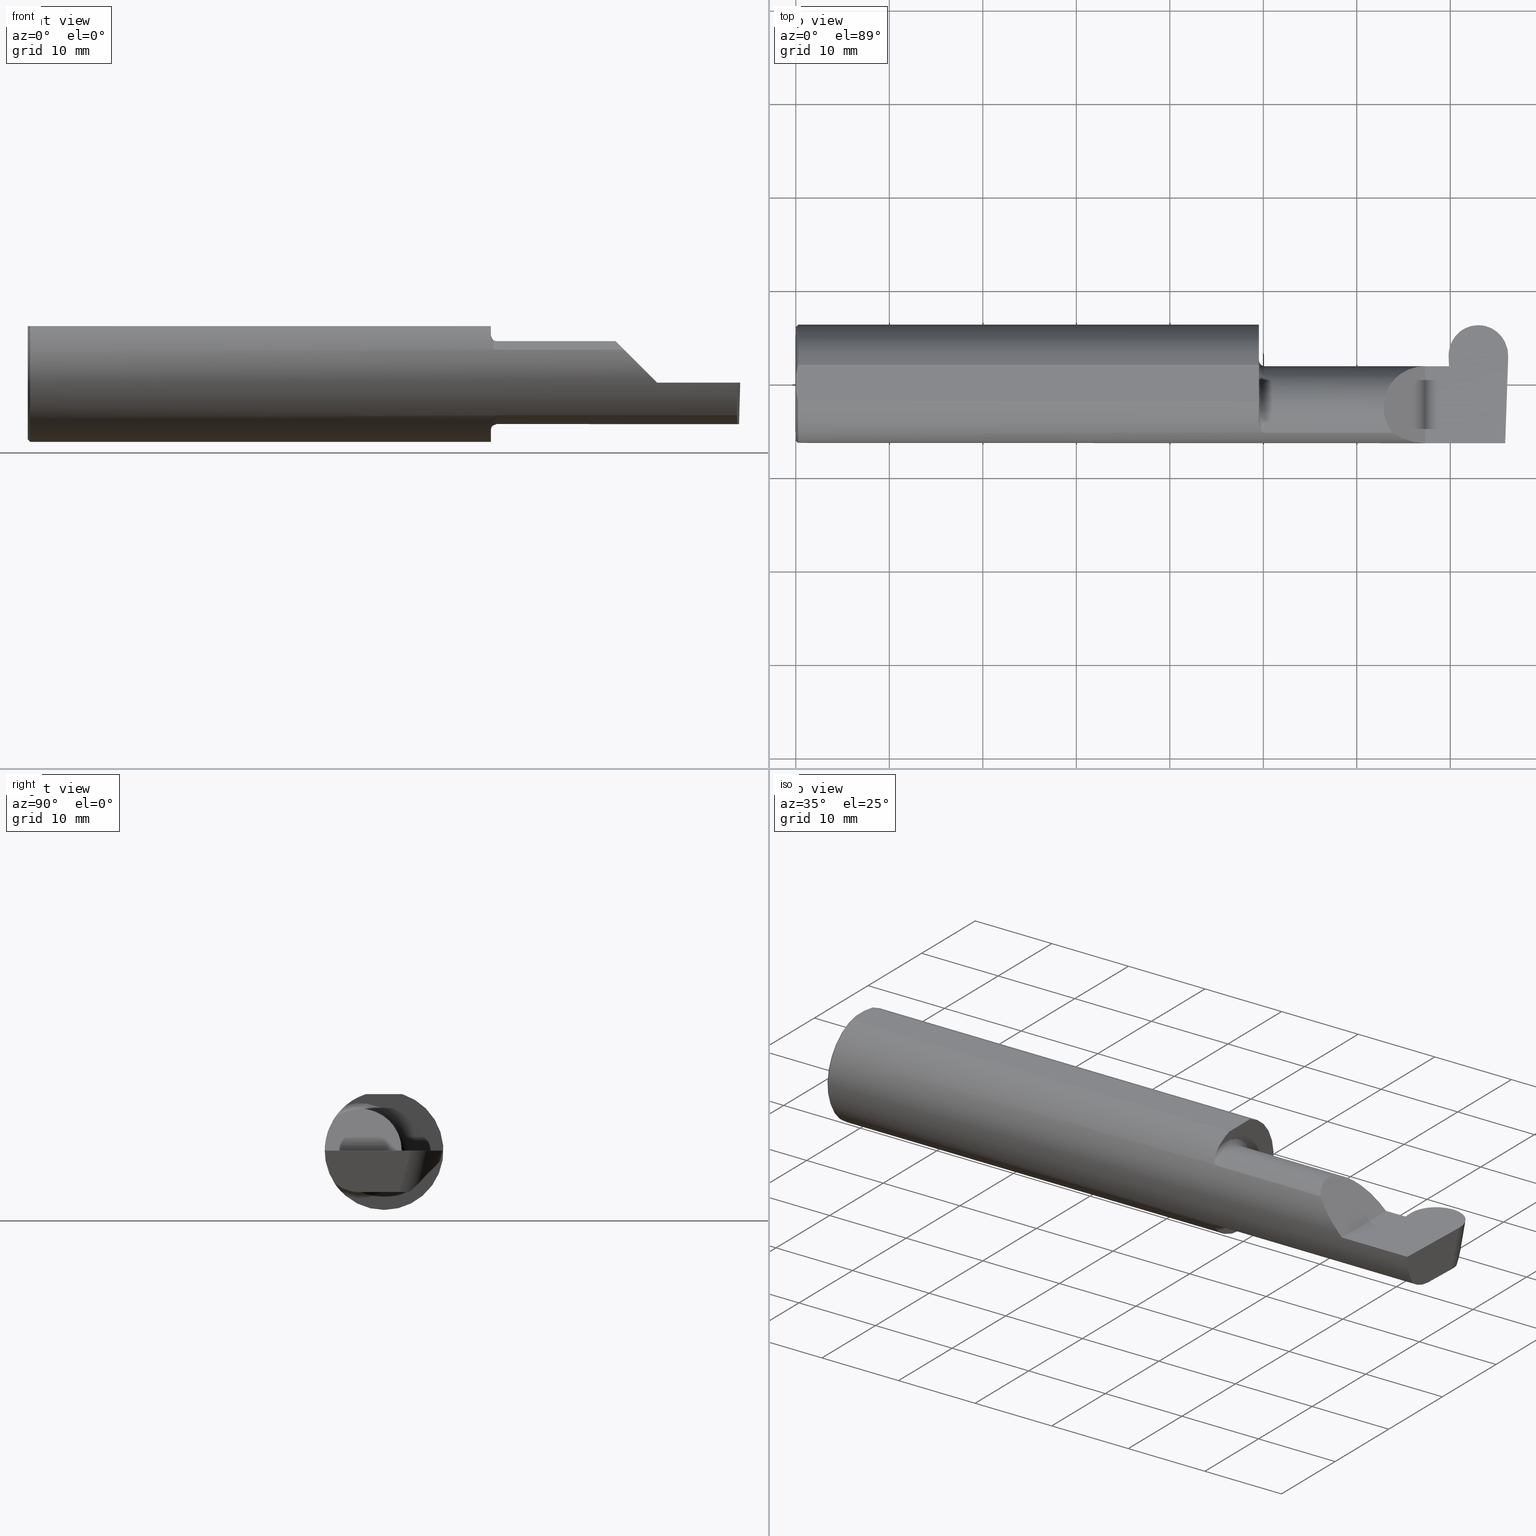
[diagram: canonical four-view strip — front | top / right | iso, engineering-drawing reading convention]
A machine part, canonical four-view strip (front | top / right | iso — engineering-drawing reading convention). The complete STEP part file that produces these views, byte-faithful:
ISO-10303-21;
HEADER;
FILE_DESCRIPTION (( 'STEP AP203' ),
    '1' );
FILE_NAME ('222521-GFR250-16.STEP',
    '2024-06-28T19:28:29',
    ( '' ),
    ( '' ),
    'SwSTEP 2.0',
    'SolidWorks 2024',
    '' );
FILE_SCHEMA (( 'CONFIG_CONTROL_DESIGN' ));
ENDSEC;

DATA;
#1 = EDGE_LOOP ( 'NONE', ( #122, #570, #582, #646, #242, #265, #209, #213, #458, #60 ) ) ;
#2 = AXIS2_PLACEMENT_3D ( 'NONE', #204, #495, #440 ) ;
#3 = DIRECTION ( 'NONE',  ( 0.000000000000000000, 0.9659258262890680902, -0.2588190451025210170 ) ) ;
#4 = ADVANCED_FACE ( 'NONE', ( #576 ), #54, .F. ) ;
#5 = DIRECTION ( 'NONE',  ( 0.01806679408117533442, 0.000000000000000000, -0.9998367821557817559 ) ) ;
#6 = CYLINDRICAL_SURFACE ( 'NONE', #381, 0.1255000000000000004 ) ;
#7 = EDGE_LOOP ( 'NONE', ( #660, #640, #613, #62, #698, #485 ) ) ;
#8 = CARTESIAN_POINT ( 'NONE',  ( 2.750478392166241903, 0.07404339472834139957, -0.006107411922948607387 ) ) ;
#9 = CARTESIAN_POINT ( 'NONE',  ( 3.402190948718818664, -0.1008500000000000091, -0.1750000000000000722 ) ) ;
#10 = VERTEX_POINT ( 'NONE', #108 ) ;
#11 = CARTESIAN_POINT ( 'NONE',  ( 2.986241469175252128, -0.2498499999999999610, -0.04956584089959695932 ) ) ;
#12 = DATE_AND_TIME ( #707, #562 ) ;
#13 = ORIENTED_EDGE ( 'NONE', *, *, #722, .T. ) ;
#14 = ADVANCED_FACE ( 'NONE', ( #225 ), #508, .T. ) ;
#15 = AXIS2_PLACEMENT_3D ( 'NONE', #321, #554, #95 ) ;
#16 = CARTESIAN_POINT ( 'NONE',  ( 4.499279347985562423E-32, -0.2498499999999999610, 3.673940397442054938E-16 ) ) ;
#17 = DIRECTION ( 'NONE',  ( 0.000000000000000000, 0.000000000000000000, 1.000000000000000000 ) ) ;
#18 = CARTESIAN_POINT ( 'NONE',  ( 2.739220100782099543, 0.07404339472834142732, -0.006107411922947214404 ) ) ;
#19 = CALENDAR_DATE ( 2024, 28, 6 ) ;
#20 = EDGE_CURVE ( 'NONE', #633, #298, #515, .T. ) ;
#21 = CARTESIAN_POINT ( 'NONE',  ( 2.768056554299977989, 0.1849635101964373640, -0.09586082695173160639 ) ) ;
#22 = EDGE_LOOP ( 'NONE', ( #609, #293, #89 ) ) ;
#23 = AXIS2_PLACEMENT_3D ( 'NONE', #649, #73, #124 ) ;
#24 = CARTESIAN_POINT ( 'NONE',  ( 1.975000000000000089, -0.1008500000000000368, 0.000000000000000000 ) ) ;
#25 = CARTESIAN_POINT ( 'NONE',  ( 0.009999999999999856226, 0.000000000000000000, 0.000000000000000000 ) ) ;
#26 = APPLICATION_CONTEXT ( 'configuration controlled 3d designs of mechanical parts and assemblies' ) ;
#27 = ADVANCED_FACE ( 'NONE', ( #216 ), #295, .T. ) ;
#28 = PERSON_AND_ORGANIZATION ( #187, #643 ) ;
#29 = ORIENTED_EDGE ( 'NONE', *, *, #201, .F. ) ;
#30 = CARTESIAN_POINT ( 'NONE',  ( 2.650000000000000355, 0.07414999999999997982, 1.285879139104719253E-16 ) ) ;
#31 = CARTESIAN_POINT ( 'NONE',  ( 2.871989500000000195, 0.2348243371481683328, -0.04599999999999999922 ) ) ;
#32 = ORIENTED_EDGE ( 'NONE', *, *, #93, .T. ) ;
#33 = DIRECTION ( 'NONE',  ( -0.01806954526206910883, 0.01744955702544859211, 0.9996844524616943506 ) ) ;
#34 = DIRECTION ( 'NONE',  ( -0.03489949670249542502, -0.9993908270190959842, 0.000000000000000000 ) ) ;
#35 = ORIENTED_EDGE ( 'NONE', *, *, #568, .F. ) ;
#36 = CARTESIAN_POINT ( 'NONE',  ( 1.968863362722770738, -0.2068301641248770362, -0.1401678546132360814 ) ) ;
#37 = TOROIDAL_SURFACE ( 'NONE', #668, 0.1999999999999999556, 0.02499999999999993547 ) ;
#38 = VECTOR ( 'NONE', #363, 39.37007874015748143 ) ;
#39 = DIRECTION ( 'NONE',  ( 0.000000000000000000, -0.9998476951563912696, 0.01745240643728358451 ) ) ;
#40 = AXIS2_PLACEMENT_3D ( 'NONE', #586, #522, #452 ) ;
#41 = EDGE_LOOP ( 'NONE', ( #366, #374, #206, #141, #227, #688, #557 ) ) ;
#42 = CARTESIAN_POINT ( 'NONE',  ( 1.975000000000000089, -0.2080850024789289987, -0.1382955322609668025 ) ) ;
#43 =( BOUNDED_CURVE ( )  B_SPLINE_CURVE ( 3, ( #510, #408, #737, #77 ),
 .UNSPECIFIED., .F., .T. ) 
 B_SPLINE_CURVE_WITH_KNOTS ( ( 4, 4 ),
 ( 3.126640370658172241, 4.420746632591429304 ),
 .UNSPECIFIED. ) 
 CURVE ( )  GEOMETRIC_REPRESENTATION_ITEM ( )  RATIONAL_B_SPLINE_CURVE ( ( 1.000000000000000000, 0.8652424962921507756, 0.8652424962921507756, 1.000000000000000000 ) ) 
 REPRESENTATION_ITEM ( '' )  );
#44 = CARTESIAN_POINT ( 'NONE',  ( 1.973329956043142985, -0.2080850024798591713, 0.1382955322595674219 ) ) ;
#45 = ORIENTED_EDGE ( 'NONE', *, *, #642, .F. ) ;
#46 = LINE ( 'NONE', #289, #606 ) ;
#47 = CARTESIAN_POINT ( 'NONE',  ( 2.753585400763539415, -0.1008500000000000091, -0.1750000000000000444 ) ) ;
#48 = DIRECTION ( 'NONE',  ( -1.000000000000000000, -4.274981070833214909E-17, 0.000000000000000000 ) ) ;
#49 = ADVANCED_FACE ( 'NONE', ( #339 ), #396, .T. ) ;
#50 = DIRECTION ( 'NONE',  ( -0.000000000000000000, 1.223176342469858371E-16, 1.000000000000000000 ) ) ;
#51 = VECTOR ( 'NONE', #436, 39.37007874015748143 ) ;
#52 = CARTESIAN_POINT ( 'NONE',  ( 3.000000000000000444, -0.2500000000000000555, 0.000000000000000000 ) ) ;
#53 = CARTESIAN_POINT ( 'NONE',  ( 2.750478392166241903, 0.07404339472834139957, -0.006107411922948607387 ) ) ;
#54 = PLANE ( 'NONE',  #364 ) ;
#55 = ORIENTED_EDGE ( 'NONE', *, *, #106, .F. ) ;
#56 = CARTESIAN_POINT ( 'NONE',  ( 0.005459900170181723050, -0.06167314502012866823, 0.2378499999999998671 ) ) ;
#57 = EDGE_CURVE ( 'NONE', #679, #197, #134, .T. ) ;
#58 = DIRECTION ( 'NONE',  ( -0.0003154085283454350426, 0.9999999502587288980, -1.223178646569383192E-16 ) ) ;
#59 = AXIS2_PLACEMENT_3D ( 'NONE', #395, #50, #338 ) ;
#60 = ORIENTED_EDGE ( 'NONE', *, *, #608, .T. ) ;
#61 = FACE_OUTER_BOUND ( 'NONE', #690, .T. ) ;
#62 = ORIENTED_EDGE ( 'NONE', *, *, #474, .F. ) ;
#63 = DIRECTION ( 'NONE',  ( -0.03489949670249542502, -0.9993908270190959842, 1.222058880457094394E-16 ) ) ;
#64 = CARTESIAN_POINT ( 'NONE',  ( 2.748789500000000441, 0.1196039745734777532, 3.076441347372056086E-17 ) ) ;
#65 = ORIENTED_EDGE ( 'NONE', *, *, #585, .F. ) ;
#66 = EDGE_CURVE ( 'NONE', #451, #92, #407, .T. ) ;
#67 = CARTESIAN_POINT ( 'NONE',  ( 2.985913134503198840, -0.2355204011147991883, -0.09701513151466753526 ) ) ;
#68 = APPROVAL_ROLE ( '' ) ;
#69 = EDGE_LOOP ( 'NONE', ( #561, #32, #493, #78, #446, #285, #671, #596, #357, #621, #162, #461, #354 ) ) ;
#70 = CC_DESIGN_PERSON_AND_ORGANIZATION_ASSIGNMENT ( #383, #392, ( #316 ) ) ;
#71 = AXIS2_PLACEMENT_3D ( 'NONE', #24, #662, #99 ) ;
#72 = DIMENSIONAL_EXPONENTS ( 1.000000000000000000, 0.000000000000000000, 0.000000000000000000, 0.000000000000000000, 0.000000000000000000, 0.000000000000000000, 0.000000000000000000 ) ;
#73 = DIRECTION ( 'NONE',  ( -1.000000000000000000, -0.000000000000000000, -0.000000000000000000 ) ) ;
#74 =( LENGTH_UNIT ( ) NAMED_UNIT ( * ) SI_UNIT ( $, .METRE. ) );
#75 = VERTEX_POINT ( 'NONE', #173 ) ;
#76 = LINE ( 'NONE', #198, #727 ) ;
#77 = CARTESIAN_POINT ( 'NONE',  ( 2.990641147540828104, 0.1058243371481696476, -0.1750000000000001277 ) ) ;
#78 = ORIENTED_EDGE ( 'NONE', *, *, #224, .T. ) ;
#79 = CARTESIAN_POINT ( 'NONE',  ( 0.009999999999999856226, 0.07650098038587520299, 0.2378499999999998671 ) ) ;
#80 = EDGE_CURVE ( 'NONE', #744, #127, #647, .T. ) ;
#81 = DIRECTION ( 'NONE',  ( 1.000000000000000000, 0.000000000000000000, 0.000000000000000000 ) ) ;
#82 = APPROVAL_DATE_TIME ( #12, #271 ) ;
#83 = ORIENTED_EDGE ( 'NONE', *, *, #398, .T. ) ;
#84 = CARTESIAN_POINT ( 'NONE',  ( 2.750367999175829414, 0.07414999999999984104, -4.822780832875165838E-21 ) ) ;
#85 = APPROVAL_PERSON_ORGANIZATION ( #323, #735, #327 ) ;
#86 = CC_DESIGN_PERSON_AND_ORGANIZATION_ASSIGNMENT ( #628, #319, ( #563 ) ) ;
#87 = CARTESIAN_POINT ( 'NONE',  ( 2.752599177285632415, 0.1041970330334761191, -0.1750000000000001277 ) ) ;
#88 = COORDINATED_UNIVERSAL_TIME_OFFSET ( 8, 0, .BEHIND. ) ;
#89 = ORIENTED_EDGE ( 'NONE', *, *, #179, .T. ) ;
#90 = CARTESIAN_POINT ( 'NONE',  ( 1.950000000000000178, -0.1008500000000000368, 0.000000000000000000 ) ) ;
#91 = CARTESIAN_POINT ( 'NONE',  ( 2.750367999175829414, 0.07414999999999984104, 0.000000000000000000 ) ) ;
#92 = VERTEX_POINT ( 'NONE', #638 ) ;
#93 = EDGE_CURVE ( 'NONE', #276, #744, #630, .T. ) ;
#94 = EDGE_CURVE ( 'NONE', #496, #633, #480, .T. ) ;
#95 = DIRECTION ( 'NONE',  ( 0.000000000000000000, -0.2588190451025209615, -0.9659258262890682012 ) ) ;
#96 = CARTESIAN_POINT ( 'NONE',  ( 2.753013396079577735, 0.1058243371481696476, -0.1750000000000001277 ) ) ;
#97 = ORIENTED_EDGE ( 'NONE', *, *, #637, .T. ) ;
#98 = CC_DESIGN_PERSON_AND_ORGANIZATION_ASSIGNMENT ( #428, #612, ( #316 ) ) ;
#99 = DIRECTION ( 'NONE',  ( 0.000000000000000000, -1.000000000000000000, 0.000000000000000000 ) ) ;
#100 = VECTOR ( 'NONE', #521, 39.37007874015748143 ) ;
#101 = DIRECTION ( 'NONE',  ( -0.01806954526206910883, 0.01744955702544859211, 0.9996844524616943506 ) ) ;
#102 = SECURITY_CLASSIFICATION_LEVEL ( 'unclassified' ) ;
#103 = EDGE_LOOP ( 'NONE', ( #713, #482, #416, #309 ) ) ;
#104 = DIRECTION ( 'NONE',  ( 1.000000000000000000, -0.000000000000000000, -0.000000000000000000 ) ) ;
#105 = PLANE ( 'NONE',  #486 ) ;
#106 = EDGE_CURVE ( 'NONE', #411, #261, #236, .T. ) ;
#107 = APPROVAL_DATE_TIME ( #257, #735 ) ;
#108 = CARTESIAN_POINT ( 'NONE',  ( 1.950000000000000178, -0.1616050818046604609, 0.1905487340154979614 ) ) ;
#109 = EDGE_CURVE ( 'NONE', #740, #593, #334, .T. ) ;
#110 = CARTESIAN_POINT ( 'NONE',  ( 2.750367999175829414, 0.07414999999999984104, 0.000000000000000000 ) ) ;
#111 = DIRECTION ( 'NONE',  ( 0.000000000000000000, -0.9659258262890683122, 0.2588190451025209615 ) ) ;
#112 = CARTESIAN_POINT ( 'NONE',  ( 1.950000000000000178, 0.07404339472834149671, -0.006107411922944308742 ) ) ;
#113 = CIRCLE ( 'NONE', #71, 0.1750000000000000167 ) ;
#114 = ORIENTED_EDGE ( 'NONE', *, *, #287, .F. ) ;
#115 = DIRECTION ( 'NONE',  ( -1.224646799147351975E-16, 0.000000000000000000, -1.000000000000000000 ) ) ;
#116 = LINE ( 'NONE', #590, #463 ) ;
#117 = CARTESIAN_POINT ( 'NONE',  ( 2.986150208451177512, -0.2080850024789290265, -0.1382955322609667193 ) ) ;
#118 = CARTESIAN_POINT ( 'NONE',  ( 3.002511784637379222, 0.1912804032740405558, -7.160714913043396685E-18 ) ) ;
#119 = DIRECTION ( 'NONE',  ( -1.000000000000000000, -0.000000000000000000, -0.000000000000000000 ) ) ;
#120 = AXIS2_PLACEMENT_3D ( 'NONE', #572, #524, #535 ) ;
#121 = AXIS2_PLACEMENT_3D ( 'NONE', #717, #17, #241 ) ;
#122 = ORIENTED_EDGE ( 'NONE', *, *, #300, .F. ) ;
#123 = EDGE_CURVE ( 'NONE', #320, #679, #520, .T. ) ;
#124 = DIRECTION ( 'NONE',  ( 0.000000000000000000, 0.000000000000000000, 1.000000000000000000 ) ) ;
#125 = ADVANCED_FACE ( 'NONE', ( #61 ), #477, .F. ) ;
#126 = PLANE ( 'NONE',  #704 ) ;
#127 = VERTEX_POINT ( 'NONE', #470 ) ;
#128 = LINE ( 'NONE', #580, #739 ) ;
#129 = ORIENTED_EDGE ( 'NONE', *, *, #389, .T. ) ;
#130 = DIRECTION ( 'NONE',  ( -0.000000000000000000, 1.000000000000000000, -0.000000000000000000 ) ) ;
#131 = ADVANCED_BREP_SHAPE_REPRESENTATION ( '222521-GFR250-16', ( #277, #121 ), #634 ) ;
#132 = APPROVAL_ROLE ( '' ) ;
#133 = VERTEX_POINT ( 'NONE', #693 ) ;
#134 = CIRCLE ( 'NONE', #120, 0.2398500000000001742 ) ;
#135 = VECTOR ( 'NONE', #581, 39.37007874015748143 ) ;
#136 = FACE_OUTER_BOUND ( 'NONE', #702, .T. ) ;
#137 = EDGE_CURVE ( 'NONE', #75, #451, #128, .T. ) ;
#138 = CARTESIAN_POINT ( 'NONE',  ( 2.748789500000000441, 0.1158222753493551166, -0.01411349364336943017 ) ) ;
#139 = DIRECTION ( 'NONE',  ( 0.000000000000000000, 0.000000000000000000, 1.000000000000000000 ) ) ;
#140 = CARTESIAN_POINT ( 'NONE',  ( 0.000000000000000000, 0.07650098038587520299, 0.2378499999999998671 ) ) ;
#141 = ORIENTED_EDGE ( 'NONE', *, *, #742, .T. ) ;
#142 = CARTESIAN_POINT ( 'NONE',  ( 2.987885367171879025, -0.1400387324517230192, -0.1750000000000000444 ) ) ;
#143 = PLANE ( 'NONE',  #403 ) ;
#144 = PERSON_AND_ORGANIZATION ( #187, #643 ) ;
#145 = ORIENTED_EDGE ( 'NONE', *, *, #417, .F. ) ;
#146 = VECTOR ( 'NONE', #618, 39.37007874015748143 ) ;
#147 = LINE ( 'NONE', #84, #237 ) ;
#148 = FACE_OUTER_BOUND ( 'NONE', #7, .T. ) ;
#149 = ADVANCED_FACE ( 'NONE', ( #352 ), #184, .F. ) ;
#150 = EDGE_LOOP ( 'NONE', ( #500, #246, #252, #153 ) ) ;
#151 = DIRECTION ( 'NONE',  ( -4.274981070833214909E-17, 1.000000000000000000, 0.000000000000000000 ) ) ;
#152 = CARTESIAN_POINT ( 'NONE',  ( 2.748789500000000441, 0.1195161796598801229, -0.0003276550781923979702 ) ) ;
#153 = ORIENTED_EDGE ( 'NONE', *, *, #650, .T. ) ;
#154 = CARTESIAN_POINT ( 'NONE',  ( 1.964302603425052141, -0.2041009206016213551, -0.1441313430770038706 ) ) ;
#155 = LINE ( 'NONE', #112, #146 ) ;
#156 = APPROVAL_STATUS ( 'not_yet_approved' ) ;
#157 = VERTEX_POINT ( 'NONE', #584 ) ;
#158 = EDGE_CURVE ( 'NONE', #732, #344, #229, .T. ) ;
#159 = DIRECTION ( 'NONE',  ( -0.03489949670249486297, 0.9993908270190959842, -1.222058880457094394E-16 ) ) ;
#160 = AXIS2_PLACEMENT_3D ( 'NONE', #347, #180, #706 ) ;
#161 = CARTESIAN_POINT ( 'NONE',  ( 1.968876997637614812, -0.2068363917296600629, 0.1401586554522229466 ) ) ;
#162 = ORIENTED_EDGE ( 'NONE', *, *, #741, .F. ) ;
#163 = ADVANCED_FACE ( 'NONE', ( #532 ), #467, .T. ) ;
#164 = CARTESIAN_POINT ( 'NONE',  ( 2.748789500000000441, 0.1193523022059226057, 0.000000000000000000 ) ) ;
#165 = CARTESIAN_POINT ( 'NONE',  ( 1.951849548162864378, -0.1805300287242674884, 0.1728462070311779786 ) ) ;
#166 = CALENDAR_DATE ( 2024, 28, 6 ) ;
#167 = DIRECTION ( 'NONE',  ( 4.274981070833214909E-17, -1.000000000000000000, 0.000000000000000000 ) ) ;
#168 = CARTESIAN_POINT ( 'NONE',  ( 1.958182335268384477, -0.1972192205116131414, 0.1535061413537209818 ) ) ;
#169 = VERTEX_POINT ( 'NONE', #291 ) ;
#170 = AXIS2_PLACEMENT_3D ( 'NONE', #91, #39, #664 ) ;
#171 = ORIENTED_EDGE ( 'NONE', *, *, #287, .T. ) ;
#172 = CC_DESIGN_APPROVAL ( #735, ( #563 ) ) ;
#173 = CARTESIAN_POINT ( 'NONE',  ( 0.009999999999999856226, -0.07650098038587520299, 0.2378499999999998671 ) ) ;
#174 = PRODUCT_RELATED_PRODUCT_CATEGORY ( 'detail', '', ( #367 ) ) ;
#175 = CARTESIAN_POINT ( 'NONE',  ( 2.999793206199442785, 0.1134305025558126345, 0.000000000000000000 ) ) ;
#176 =( BOUNDED_CURVE ( )  B_SPLINE_CURVE ( 3, ( #178, #733, #233, #64 ),
 .UNSPECIFIED., .F., .T. ) 
 B_SPLINE_CURVE_WITH_KNOTS ( ( 4, 4 ),
 ( -8.881784197001252323E-16, 1.570796326794896780 ),
 .UNSPECIFIED. ) 
 CURVE ( )  GEOMETRIC_REPRESENTATION_ITEM ( )  RATIONAL_B_SPLINE_CURVE ( ( 1.000000000000000000, 0.8047378541243646044, 0.8047378541243646044, 1.000000000000000000 ) ) 
 REPRESENTATION_ITEM ( '' )  );
#177 = CARTESIAN_POINT ( 'NONE',  ( 2.987107171508847081, -0.2498499999999999888, 0.000000000000000000 ) ) ;
#178 = CARTESIAN_POINT ( 'NONE',  ( 2.871989500000000195, 0.2471499999999999808, 0.000000000000000000 ) ) ;
#179 = EDGE_CURVE ( 'NONE', #127, #578, #288, .T. ) ;
#180 = DIRECTION ( 'NONE',  ( 0.9992386149554828290, 0.03489418134010756345, 0.01745240643728358798 ) ) ;
#181 = CIRCLE ( 'NONE', #2, 0.2498499999999999888 ) ;
#182 = CARTESIAN_POINT ( 'NONE',  ( 0.000000000000000000, 0.000000000000000000, -0.2398500000000001742 ) ) ;
#183 = ORIENTED_EDGE ( 'NONE', *, *, #653, .F. ) ;
#184 = PLANE ( 'NONE',  #194 ) ;
#185 =( BOUNDED_CURVE ( )  B_SPLINE_CURVE ( 3, ( #260, #597, #724, #669 ),
 .UNSPECIFIED., .F., .T. ) 
 B_SPLINE_CURVE_WITH_KNOTS ( ( 4, 4 ),
 ( 4.712388980384689674, 5.298966915116345433 ),
 .UNSPECIFIED. ) 
 CURVE ( )  GEOMETRIC_REPRESENTATION_ITEM ( )  RATIONAL_B_SPLINE_CURVE ( ( 1.000000000000000000, 0.9715321379117540790, 0.9715321379117540790, 1.000000000000000000 ) ) 
 REPRESENTATION_ITEM ( '' )  );
#186 = APPROVAL_STATUS ( 'not_yet_approved' ) ;
#187 = PERSON ( 'UNSPECIFIED', 'UNSPECIFIED', 'UNSPECIFIED', ('UNSPECIFIED'), ('UNSPECIFIED'), ('UNSPECIFIED') ) ;
#188 = VERTEX_POINT ( 'NONE', #8 ) ;
#189 = CARTESIAN_POINT ( 'NONE',  ( 1.950000000000000178, 0.2498499999999997945, 0.2378499999999998671 ) ) ;
#190 = ORIENTED_EDGE ( 'NONE', *, *, #588, .T. ) ;
#191 = CARTESIAN_POINT ( 'NONE',  ( 2.753531167726741113, 0.07109536363756174815, -0.1750000000000001277 ) ) ;
#192 = EDGE_CURVE ( 'NONE', #276, #465, #303, .T. ) ;
#193 = ORIENTED_EDGE ( 'NONE', *, *, #192, .T. ) ;
#194 = AXIS2_PLACEMENT_3D ( 'NONE', #359, #709, #5 ) ;
#195 = CARTESIAN_POINT ( 'NONE',  ( 2.986150208451177512, -0.2080850024789290265, -0.1382955322609667193 ) ) ;
#196 = CARTESIAN_POINT ( 'NONE',  ( 2.986150208451177512, -0.2080850024789290265, -0.1382955322609667193 ) ) ;
#197 = VERTEX_POINT ( 'NONE', #644 ) ;
#198 = CARTESIAN_POINT ( 'NONE',  ( 2.871989500000000195, 0.2471499999999999808, -3.410704134146979313E-18 ) ) ;
#199 =( NAMED_UNIT ( * ) PLANE_ANGLE_UNIT ( ) SI_UNIT ( $, .RADIAN. ) );
#200 = EDGE_LOOP ( 'NONE', ( #114, #725, #441, #190 ) ) ;
#201 = EDGE_CURVE ( 'NONE', #711, #379, #589, .T. ) ;
#202 = CARTESIAN_POINT ( 'NONE',  ( 0.000000000000000000, 0.03090954545120574992, 0.2378499999999998671 ) ) ;
#203 = ADVANCED_FACE ( 'NONE', ( #256 ), #559, .F. ) ;
#204 = CARTESIAN_POINT ( 'NONE',  ( 1.950000000000000178, 0.000000000000000000, 0.000000000000000000 ) ) ;
#205 = DATE_AND_TIME ( #166, #670 ) ;
#206 = ORIENTED_EDGE ( 'NONE', *, *, #719, .T. ) ;
#207 = PLANE ( 'NONE',  #341 ) ;
#208 = CARTESIAN_POINT ( 'NONE',  ( 2.752802398054977839, 0.1050117459796568314, -0.1750000000000001277 ) ) ;
#209 = ORIENTED_EDGE ( 'NONE', *, *, #179, .F. ) ;
#210 =( BOUNDED_CURVE ( )  B_SPLINE_CURVE ( 3, ( #47, #516, #575, #53 ),
 .UNSPECIFIED., .F., .T. ) 
 B_SPLINE_CURVE_WITH_KNOTS ( ( 4, 4 ),
 ( 3.159045946109733993, 4.694935687864681739 ),
 .UNSPECIFIED. ) 
 CURVE ( )  GEOMETRIC_REPRESENTATION_ITEM ( )  RATIONAL_B_SPLINE_CURVE ( ( 1.000000000000000000, 0.8128932002257818201, 0.8128932002257818201, 1.000000000000000000 ) ) 
 REPRESENTATION_ITEM ( '' )  );
#211 = CARTESIAN_POINT ( 'NONE',  ( 1.956147634408387459, -0.1932733126899460196, -0.1584637047788197417 ) ) ;
#212 = CARTESIAN_POINT ( 'NONE',  ( 1.962616400345755796, -0.2024684335577103256, 0.1464246884265637816 ) ) ;
#213 = ORIENTED_EDGE ( 'NONE', *, *, #80, .F. ) ;
#214 = DIRECTION ( 'NONE',  ( 0.000000000000000000, -0.7071067811865435759, -0.7071067811865514585 ) ) ;
#215 = CARTESIAN_POINT ( 'NONE',  ( 2.748789500000000441, 0.1196039745734777532, 3.076441347372056086E-17 ) ) ;
#216 = FACE_OUTER_BOUND ( 'NONE', #534, .T. ) ;
#217 = EDGE_CURVE ( 'NONE', #272, #235, #543, .T. ) ;
#218 = VECTOR ( 'NONE', #457, 39.37007874015748143 ) ;
#219 = VECTOR ( 'NONE', #686, 39.37007874015748854 ) ;
#220 = CARTESIAN_POINT ( 'NONE',  ( 1.971718393013768500, -0.2077830475237241459, 0.1387513848711937059 ) ) ;
#221 = ORIENTED_EDGE ( 'NONE', *, *, #20, .T. ) ;
#222 = CARTESIAN_POINT ( 'NONE',  ( 2.748789500000000441, -0.2500000000000000555, 3.076441347372055469E-17 ) ) ;
#223 = ORIENTED_EDGE ( 'NONE', *, *, #430, .F. ) ;
#224 = EDGE_CURVE ( 'NONE', #127, #344, #185, .T. ) ;
#225 = FACE_OUTER_BOUND ( 'NONE', #537, .T. ) ;
#226 = APPROVAL_PERSON_ORGANIZATION ( #144, #271, #68 ) ;
#227 = ORIENTED_EDGE ( 'NONE', *, *, #201, .T. ) ;
#228 = CARTESIAN_POINT ( 'NONE',  ( 0.009999999999999856226, 0.000000000000000000, 0.000000000000000000 ) ) ;
#229 = LINE ( 'NONE', #592, #654 ) ;
#230 = ORIENTED_EDGE ( 'NONE', *, *, #663, .F. ) ;
#231 = EDGE_CURVE ( 'NONE', #169, #92, #181, .T. ) ;
#232 = CARTESIAN_POINT ( 'NONE',  ( 2.361894750000000265, -0.2080850024789290820, -0.1382955322609667193 ) ) ;
#233 = CARTESIAN_POINT ( 'NONE',  ( 2.748789500000000441, 0.1943187064415508314, 3.216169852589703280E-17 ) ) ;
#234 = EDGE_CURVE ( 'NONE', #479, #133, #76, .T. ) ;
#235 = VERTEX_POINT ( 'NONE', #539 ) ;
#236 = LINE ( 'NONE', #418, #605 ) ;
#237 = VECTOR ( 'NONE', #33, 39.37007874015748143 ) ;
#238 = CC_DESIGN_APPROVAL ( #600, ( #316 ) ) ;
#239 = ORIENTED_EDGE ( 'NONE', *, *, #349, .F. ) ;
#240 = CARTESIAN_POINT ( 'NONE',  ( 2.748866015324560319, 0.1171611899918090366, 0.000000000000000000 ) ) ;
#241 = DIRECTION ( 'NONE',  ( 1.000000000000000000, 0.000000000000000000, 0.000000000000000000 ) ) ;
#242 = ORIENTED_EDGE ( 'NONE', *, *, #376, .F. ) ;
#243 = CARTESIAN_POINT ( 'NONE',  ( 2.739255635872652750, 0.07407892981889423190, -0.004071607948631481184 ) ) ;
#244 = EDGE_CURVE ( 'NONE', #235, #479, #705, .T. ) ;
#245 = DATE_AND_TIME ( #19, #476 ) ;
#246 = ORIENTED_EDGE ( 'NONE', *, *, #430, .T. ) ;
#247 = DIRECTION ( 'NONE',  ( 1.000000000000000000, 0.000000000000000000, 0.000000000000000000 ) ) ;
#248 = EDGE_LOOP ( 'NONE', ( #387, #718, #171, #13 ) ) ;
#249 = VECTOR ( 'NONE', #345, 39.37007874015748143 ) ;
#250 = DIRECTION ( 'NONE',  ( 0.7071067811865486830, 0.000000000000000000, -0.7071067811865462405 ) ) ;
#251 = DIRECTION ( 'NONE',  ( 0.000000000000000000, 0.000000000000000000, -1.000000000000000000 ) ) ;
#252 = ORIENTED_EDGE ( 'NONE', *, *, #253, .F. ) ;
#253 = EDGE_CURVE ( 'NONE', #75, #157, #545, .T. ) ;
#254 = ADVANCED_FACE ( 'NONE', ( #148 ), #382, .T. ) ;
#255 = CARTESIAN_POINT ( 'NONE',  ( 2.750367999175829414, 0.07414999999999984104, 0.000000000000000000 ) ) ;
#256 = FACE_OUTER_BOUND ( 'NONE', #434, .T. ) ;
#257 = DATE_AND_TIME ( #450, #297 ) ;
#258 = ORIENTED_EDGE ( 'NONE', *, *, #234, .F. ) ;
#259 = CARTESIAN_POINT ( 'NONE',  ( 0.002005502345409059580, 0.04647171987093979412, 0.2378499999999998671 ) ) ;
#260 = CARTESIAN_POINT ( 'NONE',  ( 2.650000000000000355, -0.2498499999999999610, 4.286263797015729199E-17 ) ) ;
#261 = VERTEX_POINT ( 'NONE', #191 ) ;
#262 = AXIS2_PLACEMENT_3D ( 'NONE', #275, #631, #743 ) ;
#263 = CARTESIAN_POINT ( 'NONE',  ( 1.967611663768900732, -0.2061921161193830954, -0.1411075319999376410 ) ) ;
#264 = CARTESIAN_POINT ( 'NONE',  ( 2.511704467739032332, -0.2080850024789293040, 0.1382955322609664139 ) ) ;
#265 = ORIENTED_EDGE ( 'NONE', *, *, #565, .F. ) ;
#266 = ADVANCED_FACE ( 'NONE', ( #728 ), #143, .F. ) ;
#267 = CARTESIAN_POINT ( 'NONE',  ( 2.750367999175829414, 0.07414999999999984104, -4.822780832875165838E-21 ) ) ;
#268 = ORIENTED_EDGE ( 'NONE', *, *, #419, .T. ) ;
#269 = LINE ( 'NONE', #346, #219 ) ;
#270 = DIRECTION ( 'NONE',  ( -0.7071067811865511255, 0.000000000000000000, 0.7071067811865439090 ) ) ;
#271 = APPROVAL ( #533, 'UNSPECIFIED' ) ;
#272 = VERTEX_POINT ( 'NONE', #611 ) ;
#273 = AXIS2_PLACEMENT_3D ( 'NONE', #400, #518, #453 ) ;
#274 = CIRCLE ( 'NONE', #413, 0.2498499999999999888 ) ;
#275 = CARTESIAN_POINT ( 'NONE',  ( 1.950000000000000178, 0.000000000000000000, 0.000000000000000000 ) ) ;
#276 = VERTEX_POINT ( 'NONE', #196 ) ;
#277 = MANIFOLD_SOLID_BREP ( 'Fillet1', #454 ) ;
#278 = CARTESIAN_POINT ( 'NONE',  ( 2.748789500000000441, 0.1454645653348735912, -0.05220861937271868702 ) ) ;
#279 = PRODUCT_DEFINITION ( 'UNKNOWN', '', #316, #464 ) ;
#280 = ORIENTED_EDGE ( 'NONE', *, *, #456, .T. ) ;
#281 = CARTESIAN_POINT ( 'NONE',  ( 2.873271171754832487, 0.1066454132645655029, -0.03947549159599728769 ) ) ;
#282 = VECTOR ( 'NONE', #491, 39.37007874015748143 ) ;
#283 = CARTESIAN_POINT ( 'NONE',  ( 2.739326706053758276, 0.07414999999999984104, 0.000000000000000000 ) ) ;
#284 = CARTESIAN_POINT ( 'NONE',  ( 2.989253867864499092, -0.1008500000000000091, -0.1750000000000000722 ) ) ;
#285 = ORIENTED_EDGE ( 'NONE', *, *, #330, .F. ) ;
#286 = B_SPLINE_CURVE_WITH_KNOTS ( 'NONE', 3,
 ( #579, #56, #645, #292 ),
 .UNSPECIFIED., .F., .F.,
 ( 4, 4 ),
 ( 0.01317593029100230795, 0.01435802289191462008 ),
 .UNSPECIFIED. ) ;
#287 = EDGE_CURVE ( 'NONE', #479, #729, #427, .T. ) ;
#288 = LINE ( 'NONE', #355, #703 ) ;
#289 = CARTESIAN_POINT ( 'NONE',  ( 2.760318370161228163, -0.1232646843588794394, -0.1750000000000000722 ) ) ;
#290 = VERTEX_POINT ( 'NONE', #326 ) ;
#291 = CARTESIAN_POINT ( 'NONE',  ( 1.950000000000000178, -0.1616050818046604609, -0.1905487340154979614 ) ) ;
#292 = CARTESIAN_POINT ( 'NONE',  ( 0.000000000000000000, -0.03090954545120560767, 0.2378499999999998671 ) ) ;
#293 = ORIENTED_EDGE ( 'NONE', *, *, #224, .F. ) ;
#294 = DIRECTION ( 'NONE',  ( 1.000000000000000000, 4.274981070833214909E-17, 0.000000000000000000 ) ) ;
#295 = CONICAL_SURFACE ( 'NONE', #273, 0.2398500000000001742, 0.7853981633974466137 ) ;
#296 = DATE_AND_TIME ( #528, #351 ) ;
#297 = LOCAL_TIME ( 12, 28, 29.00000000000000000, #620 ) ;
#298 = VERTEX_POINT ( 'NONE', #152 ) ;
#299 = UNCERTAINTY_MEASURE_WITH_UNIT (LENGTH_MEASURE( 1.000000000000000082E-05 ), #492, 'distance_accuracy_value', 'NONE');
#300 = EDGE_CURVE ( 'NONE', #133, #512, #499, .T. ) ;
#301 = ADVANCED_FACE ( 'NONE', ( #322 ), #641, .T. ) ;
#302 =( BOUNDED_CURVE ( )  B_SPLINE_CURVE ( 3, ( #348, #118, #353, #701 ),
 .UNSPECIFIED., .F., .F. ) 
 B_SPLINE_CURVE_WITH_KNOTS ( ( 4, 4 ),
 ( 1.637964922114649058, 3.237953570749844356 ),
 .UNSPECIFIED. ) 
 CURVE ( )  GEOMETRIC_REPRESENTATION_ITEM ( )  RATIONAL_B_SPLINE_CURVE ( ( 1.000000000000000000, 0.7978071872141900833, 0.7978071872141900833, 1.000000000000000000 ) ) 
 REPRESENTATION_ITEM ( '' )  );
#303 = LINE ( 'NONE', #232, #692 ) ;
#304 = CARTESIAN_POINT ( 'NONE',  ( 2.995099234303557623, 0.06653939388036607394, -0.1750000000000001277 ) ) ;
#305 = ORIENTED_EDGE ( 'NONE', *, *, #158, .T. ) ;
#306 = CC_DESIGN_PERSON_AND_ORGANIZATION_ASSIGNMENT ( #378, #312, ( #279 ) ) ;
#307 = CARTESIAN_POINT ( 'NONE',  ( 2.752403753671178954, 0.1033802780873585708, -0.1750000000000001277 ) ) ;
#308 = CARTESIAN_POINT ( 'NONE',  ( 1.975000000000000089, -0.2080850024789290820, 0.1382955322609667470 ) ) ;
#309 = ORIENTED_EDGE ( 'NONE', *, *, #509, .F. ) ;
#310 = FACE_OUTER_BOUND ( 'NONE', #103, .T. ) ;
#311 = CARTESIAN_POINT ( 'NONE',  ( 1.950000000000000400, -0.1665641037263010105, 0.1863429692936361126 ) ) ;
#312 = PERSON_AND_ORGANIZATION_ROLE ( 'creator' ) ;
#313 = ADVANCED_FACE ( 'NONE', ( #136 ), #368, .F. ) ;
#314 = ORIENTED_EDGE ( 'NONE', *, *, #231, .T. ) ;
#315 = VECTOR ( 'NONE', #250, 39.37007874015748854 ) ;
#316 = PRODUCT_DEFINITION_FORMATION_WITH_SPECIFIED_SOURCE ( 'ANY', '', #367, .NOT_KNOWN. ) ;
#317 = CARTESIAN_POINT ( 'NONE',  ( 2.409263745716141880, -0.07597241004310721635, 0.2407362542838555608 ) ) ;
#318 = CARTESIAN_POINT ( 'NONE',  ( 2.753013396079577735, 0.1058243371481696476, -0.1750000000000001277 ) ) ;
#319 = PERSON_AND_ORGANIZATION_ROLE ( 'classification_officer' ) ;
#320 = VERTEX_POINT ( 'NONE', #432 ) ;
#321 = CARTESIAN_POINT ( 'NONE',  ( -0.002039370078740339320, 0.2471499999999999808, 0.000000000000000000 ) ) ;
#322 = FACE_OUTER_BOUND ( 'NONE', #150, .T. ) ;
#323 = PERSON_AND_ORGANIZATION ( #187, #643 ) ;
#324 = ORIENTED_EDGE ( 'NONE', *, *, #109, .F. ) ;
#325 = CARTESIAN_POINT ( 'NONE',  ( 1.975000000000000089, -0.2080850024789289987, -0.1382955322609668025 ) ) ;
#326 = CARTESIAN_POINT ( 'NONE',  ( 0.009999999999999856226, 0.07650098038587520299, 0.2378499999999998671 ) ) ;
#327 = APPROVAL_ROLE ( '' ) ;
#328 = EDGE_LOOP ( 'NONE', ( #230, #258, #616, #587, #239, #421 ) ) ;
#329 = VECTOR ( 'NONE', #63, 39.37007874015748854 ) ;
#330 = EDGE_CURVE ( 'NONE', #10, #732, #712, .T. ) ;
#331 = PLANE ( 'NONE',  #15 ) ;
#332 = FACE_OUTER_BOUND ( 'NONE', #22, .T. ) ;
#333 = ORIENTED_EDGE ( 'NONE', *, *, #123, .T. ) ;
#334 = B_SPLINE_CURVE_WITH_KNOTS ( 'NONE', 3,
 ( #18, #243, #595, #283 ),
 .UNSPECIFIED., .F., .F.,
 ( 4, 4 ),
 ( 0.000000000000000000, 1.000000000000000000 ),
 .UNSPECIFIED. ) ;
#335 = LINE ( 'NONE', #694, #715 ) ;
#336 = LINE ( 'NONE', #110, #218 ) ;
#337 = VERTEX_POINT ( 'NONE', #215 ) ;
#338 = DIRECTION ( 'NONE',  ( 0.000000000000000000, -1.000000000000000000, 1.223176342469858371E-16 ) ) ;
#339 = FACE_OUTER_BOUND ( 'NONE', #328, .T. ) ;
#340 = EDGE_CURVE ( 'NONE', #411, #188, #210, .T. ) ;
#341 = AXIS2_PLACEMENT_3D ( 'NONE', #672, #439, #151 ) ;
#342 = VECTOR ( 'NONE', #468, 39.37007874015748143 ) ;
#343 = LINE ( 'NONE', #267, #573 ) ;
#344 = VERTEX_POINT ( 'NONE', #264 ) ;
#345 = DIRECTION ( 'NONE',  ( -1.912295608712189598E-17, 0.4473225909137121814, -0.8943726849911304289 ) ) ;
#346 = CARTESIAN_POINT ( 'NONE',  ( 2.873271171754832487, 0.2278691044638435637, -0.07195728175636369184 ) ) ;
#347 = CARTESIAN_POINT ( 'NONE',  ( 2.748866015324560319, 0.1171611899918090366, 0.000000000000000000 ) ) ;
#348 = CARTESIAN_POINT ( 'NONE',  ( 2.999793206199442785, 0.1134305025558126345, 0.000000000000000000 ) ) ;
#349 = EDGE_CURVE ( 'NONE', #298, #272, #448, .T. ) ;
#350 = AXIS2_PLACEMENT_3D ( 'NONE', #423, #119, #409 ) ;
#351 = LOCAL_TIME ( 12, 28, 29.00000000000000000, #88 ) ;
#352 = FACE_OUTER_BOUND ( 'NONE', #438, .T. ) ;
#353 = CARTESIAN_POINT ( 'NONE',  ( 2.950455787437228139, 0.2471500000000003971, -7.856938782845208821E-19 ) ) ;
#354 = ORIENTED_EDGE ( 'NONE', *, *, #552, .F. ) ;
#355 = CARTESIAN_POINT ( 'NONE',  ( 2.650000000000000355, -0.2500000000000000555, 4.286263797015729199E-17 ) ) ;
#356 = DIRECTION ( 'NONE',  ( 0.000000000000000000, -0.7071067811865514585, 0.7071067811865435759 ) ) ;
#357 = ORIENTED_EDGE ( 'NONE', *, *, #253, .T. ) ;
#358 =( BOUNDED_CURVE ( )  B_SPLINE_CURVE ( 3, ( #604, #317, #614, #30 ),
 .UNSPECIFIED., .F., .T. ) 
 B_SPLINE_CURVE_WITH_KNOTS ( ( 4, 4 ),
 ( 5.623622464215678463, 7.853981633974482790 ),
 .UNSPECIFIED. ) 
 CURVE ( )  GEOMETRIC_REPRESENTATION_ITEM ( )  RATIONAL_B_SPLINE_CURVE ( ( 1.000000000000000000, 0.6266774836123988335, 0.6266774836123988335, 1.000000000000000000 ) ) 
 REPRESENTATION_ITEM ( '' )  );
#359 = CARTESIAN_POINT ( 'NONE',  ( 2.754531504291869659, -2.688765469242836659, -0.1821862048796526190 ) ) ;
#360 = EDGE_CURVE ( 'NONE', #721, #744, #627, .T. ) ;
#361 = ORIENTED_EDGE ( 'NONE', *, *, #565, .T. ) ;
#362 = ADVANCED_FACE ( 'NONE', ( #571 ), #734, .F. ) ;
#363 = DIRECTION ( 'NONE',  ( -0.03489949670249486990, 0.9993908270190959842, -0.000000000000000000 ) ) ;
#364 = AXIS2_PLACEMENT_3D ( 'NONE', #52, #115, #567 ) ;
#365 = VECTOR ( 'NONE', #658, 39.37007874015748143 ) ;
#366 = ORIENTED_EDGE ( 'NONE', *, *, #585, .T. ) ;
#367 = PRODUCT ( '222521-GFR250-16', '222521-GFR250-16', '', ( #420 ) ) ;
#368 = PLANE ( 'NONE',  #501 ) ;
#369 = CARTESIAN_POINT ( 'NONE',  ( 2.990641147540828104, 0.1058243371481696476, -0.1750000000000001277 ) ) ;
#370 = ORIENTED_EDGE ( 'NONE', *, *, #376, .T. ) ;
#371 = CARTESIAN_POINT ( 'NONE',  ( 1.962579853086619197, -0.2024300470081735470, -0.1464774911482684960 ) ) ;
#372 = ADVANCED_FACE ( 'NONE', ( #332 ), #105, .F. ) ;
#373 = CARTESIAN_POINT ( 'NONE',  ( 0.000000000000000000, 0.000000000000000000, 0.000000000000000000 ) ) ;
#374 = ORIENTED_EDGE ( 'NONE', *, *, #217, .T. ) ;
#375 = DIRECTION ( 'NONE',  ( -1.000000000000000000, -4.274981070833214909E-17, -0.000000000000000000 ) ) ;
#376 = EDGE_CURVE ( 'NONE', #593, #496, #336, .T. ) ;
#377 = DIRECTION ( 'NONE',  ( 1.000000000000000000, 0.000000000000000000, 0.000000000000000000 ) ) ;
#378 = PERSON_AND_ORGANIZATION ( #187, #643 ) ;
#379 = VERTEX_POINT ( 'NONE', #511 ) ;
#380 = AXIS2_PLACEMENT_3D ( 'NONE', #736, #48, #167 ) ;
#381 = AXIS2_PLACEMENT_3D ( 'NONE', #281, #519, #3 ) ;
#382 = PLANE ( 'NONE',  #619 ) ;
#383 = PERSON_AND_ORGANIZATION ( #187, #643 ) ;
#384 = ORIENTED_EDGE ( 'NONE', *, *, #588, .F. ) ;
#385 = DIRECTION ( 'NONE',  ( 0.000000000000000000, -1.000000000000000000, 0.000000000000000000 ) ) ;
#386 = DIRECTION ( 'NONE',  ( 1.000000000000000000, 0.000000000000000000, -0.000000000000000000 ) ) ;
#387 = ORIENTED_EDGE ( 'NONE', *, *, #719, .F. ) ;
#388 =( BOUNDED_CURVE ( )  B_SPLINE_CURVE ( 3, ( #369, #547, #540, #304 ),
 .UNSPECIFIED., .F., .T. ) 
 B_SPLINE_CURVE_WITH_KNOTS ( ( 4, 4 ),
 ( 4.339337998362998050, 4.645220385064936508 ),
 .UNSPECIFIED. ) 
 CURVE ( )  GEOMETRIC_REPRESENTATION_ITEM ( )  RATIONAL_B_SPLINE_CURVE ( ( 1.000000000000000000, 0.9922181835937360361, 0.9922181835937360361, 1.000000000000000000 ) ) 
 REPRESENTATION_ITEM ( '' )  );
#389 = EDGE_CURVE ( 'NONE', #451, #10, #583, .T. ) ;
#390 = CARTESIAN_POINT ( 'NONE',  ( 1.950000000000000178, -0.1616050818046604609, -0.1905487340154979614 ) ) ;
#391 = CARTESIAN_POINT ( 'NONE',  ( 2.748789500000000441, 0.1262550149847271597, -0.01380122061147638982 ) ) ;
#392 = PERSON_AND_ORGANIZATION_ROLE ( 'design_supplier' ) ;
#393 = ORIENTED_EDGE ( 'NONE', *, *, #742, .F. ) ;
#394 = CARTESIAN_POINT ( 'NONE',  ( -0.002039370078740339320, 0.2348243371481683328, -0.04599999999999999922 ) ) ;
#395 = CARTESIAN_POINT ( 'NONE',  ( 3.402190948718818664, -0.1008500000000000091, -0.1750000000000000722 ) ) ;
#396 = CYLINDRICAL_SURFACE ( 'NONE', #683, 0.1232000000000000178 ) ;
#397 = LINE ( 'NONE', #625, #342 ) ;
#398 = EDGE_CURVE ( 'NONE', #633, #337, #738, .T. ) ;
#399 = CARTESIAN_POINT ( 'NONE',  ( 2.750000192667624521, 0.1208498554423467070, -0.07231247811393570757 ) ) ;
#400 = CARTESIAN_POINT ( 'NONE',  ( 0.000000000000000000, 0.000000000000000000, 0.000000000000000000 ) ) ;
#401 = DIRECTION ( 'NONE',  ( -0.03489949670249543195, -0.9993908270190959842, 0.000000000000000000 ) ) ;
#402 = ORIENTED_EDGE ( 'NONE', *, *, #722, .F. ) ;
#403 = AXIS2_PLACEMENT_3D ( 'NONE', #373, #247, #716 ) ;
#404 = APPROVAL_PERSON_ORGANIZATION ( #651, #600, #132 ) ;
#405 = ORIENTED_EDGE ( 'NONE', *, *, #93, .F. ) ;
#406 = B_SPLINE_CURVE_WITH_KNOTS ( 'NONE', 3,
 ( #202, #259, #601, #79 ),
 .UNSPECIFIED., .F., .F.,
 ( 4, 4 ),
 ( 0.01593449416844770414, 0.01712021724825603733 ),
 .UNSPECIFIED. ) ;
#407 = LINE ( 'NONE', #189, #426 ) ;
#408 = CARTESIAN_POINT ( 'NONE',  ( 2.932279805067559586, 0.2348243371481688047, -0.04599999999999949962 ) ) ;
#409 = DIRECTION ( 'NONE',  ( 0.000000000000000000, 0.000000000000000000, -1.000000000000000000 ) ) ;
#410 = DIRECTION ( 'NONE',  ( 0.000000000000000000, 0.000000000000000000, -1.000000000000000000 ) ) ;
#411 = VERTEX_POINT ( 'NONE', #459 ) ;
#412 = VECTOR ( 'NONE', #401, 39.37007874015748143 ) ;
#413 = AXIS2_PLACEMENT_3D ( 'NONE', #228, #466, #410 ) ;
#414 = DIRECTION ( 'NONE',  ( -1.000000000000000000, -4.274981070833214909E-17, -0.000000000000000000 ) ) ;
#415 = LINE ( 'NONE', #9, #135 ) ;
#416 = ORIENTED_EDGE ( 'NONE', *, *, #552, .T. ) ;
#417 = EDGE_CURVE ( 'NONE', #188, #740, #155, .T. ) ;
#418 = CARTESIAN_POINT ( 'NONE',  ( 2.753585465288466594, -0.1010545757111814130, -0.1750000000000000722 ) ) ;
#419 = EDGE_CURVE ( 'NONE', #261, #188, #343, .T. ) ;
#420 = MECHANICAL_CONTEXT ( 'NONE', #699, 'mechanical' ) ;
#421 = ORIENTED_EDGE ( 'NONE', *, *, #445, .F. ) ;
#422 = CC_DESIGN_PERSON_AND_ORGANIZATION_ASSIGNMENT ( #28, #656, ( #367 ) ) ;
#423 = CARTESIAN_POINT ( 'NONE',  ( 0.000000000000000000, 0.000000000000000000, 0.000000000000000000 ) ) ;
#424 = DIRECTION ( 'NONE',  ( -1.000000000000000000, -0.000000000000000000, -0.000000000000000000 ) ) ;
#425 = ORIENTED_EDGE ( 'NONE', *, *, #473, .F. ) ;
#426 = VECTOR ( 'NONE', #700, 39.37007874015748143 ) ;
#427 = LINE ( 'NONE', #443, #282 ) ;
#428 = PERSON_AND_ORGANIZATION ( #187, #643 ) ;
#429 = ORIENTED_EDGE ( 'NONE', *, *, #349, .T. ) ;
#430 = EDGE_CURVE ( 'NONE', #679, #157, #566, .T. ) ;
#431 = LINE ( 'NONE', #138, #594 ) ;
#432 = CARTESIAN_POINT ( 'NONE',  ( 0.000000000000000000, 0.03090954545120574992, 0.2378499999999998671 ) ) ;
#433 = APPLICATION_PROTOCOL_DEFINITION ( 'international standard', 'config_control_design', 1994, #699 ) ;
#434 = EDGE_LOOP ( 'NONE', ( #425, #691, #529, #370 ) ) ;
#435 = CARTESIAN_POINT ( 'NONE',  ( 2.986812263240209653, -0.1771157075472508113, -0.1623092683844331585 ) ) ;
#436 = DIRECTION ( 'NONE',  ( 1.000000000000000000, -0.000000000000000000, -0.000000000000000000 ) ) ;
#437 = APPLICATION_PROTOCOL_DEFINITION ( 'international standard', 'config_control_design', 1994, #26 ) ;
#438 = EDGE_LOOP ( 'NONE', ( #526, #489, #55 ) ) ;
#439 = DIRECTION ( 'NONE',  ( 1.000000000000000000, 4.274981070833214909E-17, 0.000000000000000000 ) ) ;
#440 = DIRECTION ( 'NONE',  ( 0.000000000000000000, 1.000000000000000000, 0.000000000000000000 ) ) ;
#441 = ORIENTED_EDGE ( 'NONE', *, *, #300, .T. ) ;
#442 = DIRECTION ( 'NONE',  ( 1.106446518584405220E-17, -0.2588190451025209615, -0.9659258262890682012 ) ) ;
#443 = CARTESIAN_POINT ( 'NONE',  ( -0.002039370078740339320, 0.2348243371481683328, -0.04599999999999999922 ) ) ;
#444 = COORDINATED_UNIVERSAL_TIME_OFFSET ( 8, 0, .BEHIND. ) ;
#445 = EDGE_CURVE ( 'NONE', #337, #298, #431, .T. ) ;
#446 = ORIENTED_EDGE ( 'NONE', *, *, #158, .F. ) ;
#447 = CARTESIAN_POINT ( 'NONE',  ( 1.950000000000000844, -0.1716188362992556171, -0.1820560320165480195 ) ) ;
#448 =( BOUNDED_CURVE ( )  B_SPLINE_CURVE ( 3, ( #682, #391, #399, #449 ),
 .UNSPECIFIED., .F., .F. ) 
 B_SPLINE_CURVE_WITH_KNOTS ( ( 4, 4 ),
 ( 0.02920211248569567694, 0.2720232217214055281 ),
 .UNSPECIFIED. ) 
 CURVE ( )  GEOMETRIC_REPRESENTATION_ITEM ( )  RATIONAL_B_SPLINE_CURVE ( ( 1.000000000000000000, 0.9950925250835043201, 0.9950925250835043201, 1.000000000000000000 ) ) 
 REPRESENTATION_ITEM ( '' )  );
#449 = CARTESIAN_POINT ( 'NONE',  ( 2.752403753671178954, 0.1033802780873585708, -0.1750000000000001277 ) ) ;
#450 = CALENDAR_DATE ( 2024, 28, 6 ) ;
#451 = VERTEX_POINT ( 'NONE', #723 ) ;
#452 = DIRECTION ( 'NONE',  ( 0.000000000000000000, -1.000000000000000000, 0.000000000000000000 ) ) ;
#453 = DIRECTION ( 'NONE',  ( 0.000000000000000000, 0.000000000000000000, -1.000000000000000000 ) ) ;
#454 = CLOSED_SHELL ( 'NONE', ( #301, #203, #14, #163, #372, #4, #254, #266, #27, #497, #577, #513, #362, #538, #697, #125, #313, #149, #661, #49 ) ) ;
#455 = CYLINDRICAL_SURFACE ( 'NONE', #40, 0.1750000000000000167 ) ;
#456 = EDGE_CURVE ( 'NONE', #344, #578, #358, .T. ) ;
#457 = DIRECTION ( 'NONE',  ( 1.000000000000000000, -0.000000000000000000, -0.000000000000000000 ) ) ;
#458 = ORIENTED_EDGE ( 'NONE', *, *, #360, .F. ) ;
#459 = CARTESIAN_POINT ( 'NONE',  ( 2.753585400763539415, -0.1008500000000000091, -0.1750000000000000444 ) ) ;
#460 = ORIENTED_EDGE ( 'NONE', *, *, #680, .F. ) ;
#461 = ORIENTED_EDGE ( 'NONE', *, *, #231, .F. ) ;
#462 = CIRCLE ( 'NONE', #530, 0.1999999999999999556 ) ;
#463 = VECTOR ( 'NONE', #525, 39.37007874015748854 ) ;
#464 = DESIGN_CONTEXT ( 'detailed design', #26, 'design' ) ;
#465 = VERTEX_POINT ( 'NONE', #42 ) ;
#466 = DIRECTION ( 'NONE',  ( 1.000000000000000000, 0.000000000000000000, 0.000000000000000000 ) ) ;
#467 = CYLINDRICAL_SURFACE ( 'NONE', #23, 0.2498499999999999888 ) ;
#468 = DIRECTION ( 'NONE',  ( -0.000000000000000000, 1.000000000000000000, -0.000000000000000000 ) ) ;
#469 = VERTEX_POINT ( 'NONE', #610 ) ;
#470 = CARTESIAN_POINT ( 'NONE',  ( 2.650000000000000355, -0.2498499999999999610, 4.286263797015729199E-17 ) ) ;
#471 = CARTESIAN_POINT ( 'NONE',  ( 2.739326706053758276, 0.07414999999999984104, 0.000000000000000000 ) ) ;
#472 = EDGE_LOOP ( 'NONE', ( #97, #333, #603 ) ) ;
#473 = EDGE_CURVE ( 'NONE', #188, #496, #147, .T. ) ;
#474 = EDGE_CURVE ( 'NONE', #320, #290, #406, .T. ) ;
#475 = VECTOR ( 'NONE', #678, 39.37007874015748143 ) ;
#476 = LOCAL_TIME ( 12, 28, 29.00000000000000000, #536 ) ;
#477 = PLANE ( 'NONE',  #160 ) ;
#478 = CARTESIAN_POINT ( 'NONE',  ( 2.739220100782099543, 0.07404339472834142732, -0.006107411922947214404 ) ) ;
#479 = VERTEX_POINT ( 'NONE', #498 ) ;
#480 = LINE ( 'NONE', #240, #38 ) ;
#481 = LINE ( 'NONE', #140, #502 ) ;
#482 = ORIENTED_EDGE ( 'NONE', *, *, #553, .T. ) ;
#483 = CARTESIAN_POINT ( 'NONE',  ( 2.814042964602051278, 0.2348243371481683606, -0.04600000000000003392 ) ) ;
#484 = APPROVAL_DATE_TIME ( #245, #600 ) ;
#485 = ORIENTED_EDGE ( 'NONE', *, *, #650, .F. ) ;
#486 = AXIS2_PLACEMENT_3D ( 'NONE', #504, #731, #270 ) ;
#487 = CARTESIAN_POINT ( 'NONE',  ( 2.999923484675441010, 0.1171611899918090643, 0.000000000000000000 ) ) ;
#488 =( NAMED_UNIT ( * ) SI_UNIT ( $, .STERADIAN. ) SOLID_ANGLE_UNIT ( ) );
#489 = ORIENTED_EDGE ( 'NONE', *, *, #419, .F. ) ;
#490 = CARTESIAN_POINT ( 'NONE',  ( 1.950000000000000178, 0.07414999999999995206, 1.285879139104719253E-16 ) ) ;
#491 = DIRECTION ( 'NONE',  ( 1.000000000000000000, -0.000000000000000000, -0.000000000000000000 ) ) ;
#492 =( CONVERSION_BASED_UNIT ( 'INCH', #598 ) LENGTH_UNIT ( ) NAMED_UNIT ( #72 ) );
#493 = ORIENTED_EDGE ( 'NONE', *, *, #80, .T. ) ;
#494 = DIRECTION ( 'NONE',  ( 4.274981070833214909E-17, -1.000000000000000000, 0.000000000000000000 ) ) ;
#495 = DIRECTION ( 'NONE',  ( 1.000000000000000000, 4.274981070833214909E-17, 0.000000000000000000 ) ) ;
#496 = VERTEX_POINT ( 'NONE', #255 ) ;
#497 = ADVANCED_FACE ( 'NONE', ( #310 ), #37, .F. ) ;
#498 = CARTESIAN_POINT ( 'NONE',  ( 2.871989500000000195, 0.2348243371481683328, -0.04599999999999999922 ) ) ;
#499 = LINE ( 'NONE', #655, #51 ) ;
#500 = ORIENTED_EDGE ( 'NONE', *, *, #57, .F. ) ;
#501 = AXIS2_PLACEMENT_3D ( 'NONE', #487, #555, #34 ) ;
#502 = VECTOR ( 'NONE', #424, 39.37007874015748143 ) ;
#503 = CARTESIAN_POINT ( 'NONE',  ( 1.958176740666625504, -0.1972027065478073049, -0.1535263573771913637 ) ) ;
#504 = CARTESIAN_POINT ( 'NONE',  ( 2.650000000000000355, -0.2500000000000000555, 4.286263797015729199E-17 ) ) ;
#505 = ORIENTED_EDGE ( 'NONE', *, *, #608, .F. ) ;
#506 = FACE_OUTER_BOUND ( 'NONE', #517, .T. ) ;
#507 = CARTESIAN_POINT ( 'NONE',  ( 2.999923484675441010, 0.1171611899918090643, 0.000000000000000000 ) ) ;
#508 = PLANE ( 'NONE',  #380 ) ;
#509 = EDGE_CURVE ( 'NONE', #10, #169, #462, .T. ) ;
#510 = CARTESIAN_POINT ( 'NONE',  ( 2.873967416046591783, 0.2348243371481683328, -0.04599999999999999922 ) ) ;
#511 = CARTESIAN_POINT ( 'NONE',  ( 2.989253867864499092, -0.1008500000000000091, -0.1750000000000000722 ) ) ;
#512 = VERTEX_POINT ( 'NONE', #677 ) ;
#513 = ADVANCED_FACE ( 'NONE', ( #542 ), #207, .T. ) ;
#514 = CARTESIAN_POINT ( 'NONE',  ( 1.956159563508734323, -0.1933019864360849827, 0.1584298865564831016 ) ) ;
#515 = LINE ( 'NONE', #278, #249 ) ;
#516 = CARTESIAN_POINT ( 'NONE',  ( 2.753553955298210898, -0.001152430219569897715, -0.1750000000000000444 ) ) ;
#517 = EDGE_LOOP ( 'NONE', ( #193, #652, #305, #280, #361, #324, #145, #657, #183, #35 ) ) ;
#518 = DIRECTION ( 'NONE',  ( 1.000000000000000000, 0.000000000000000000, 0.000000000000000000 ) ) ;
#519 = DIRECTION ( 'NONE',  ( -0.02590004391968268177, -0.2587322210431824976, -0.9656017944882975268 ) ) ;
#520 = CIRCLE ( 'NONE', #350, 0.2398500000000001742 ) ;
#521 = DIRECTION ( 'NONE',  ( -1.000000000000000000, -0.000000000000000000, -0.000000000000000000 ) ) ;
#522 = DIRECTION ( 'NONE',  ( -1.000000000000000000, -4.274981070833214909E-17, -0.000000000000000000 ) ) ;
#523 = ORIENTED_EDGE ( 'NONE', *, *, #20, .F. ) ;
#524 = DIRECTION ( 'NONE',  ( -1.000000000000000000, -0.000000000000000000, -0.000000000000000000 ) ) ;
#525 = DIRECTION ( 'NONE',  ( 0.02590004391968268524, 0.2587322210431824976, 0.9656017944882975268 ) ) ;
#526 = ORIENTED_EDGE ( 'NONE', *, *, #340, .T. ) ;
#527 = CARTESIAN_POINT ( 'NONE',  ( 2.989756814851906697, -0.08644748268070724662, -0.1750000000000000722 ) ) ;
#528 = CALENDAR_DATE ( 2024, 28, 6 ) ;
#529 = ORIENTED_EDGE ( 'NONE', *, *, #109, .T. ) ;
#530 = AXIS2_PLACEMENT_3D ( 'NONE', #90, #617, #385 ) ;
#531 = CC_DESIGN_SECURITY_CLASSIFICATION ( #563, ( #316 ) ) ;
#532 = FACE_OUTER_BOUND ( 'NONE', #69, .T. ) ;
#533 = APPROVAL_STATUS ( 'not_yet_approved' ) ;
#534 = EDGE_LOOP ( 'NONE', ( #223, #548, #676, #460 ) ) ;
#535 = DIRECTION ( 'NONE',  ( 0.000000000000000000, 0.000000000000000000, -1.000000000000000000 ) ) ;
#536 = COORDINATED_UNIVERSAL_TIME_OFFSET ( 8, 0, .BEHIND. ) ;
#537 = EDGE_LOOP ( 'NONE', ( #83, #551, #523 ) ) ;
#538 = ADVANCED_FACE ( 'NONE', ( #667 ), #331, .F. ) ;
#539 = CARTESIAN_POINT ( 'NONE',  ( 2.753013396079577735, 0.1058243371481696476, -0.1750000000000001277 ) ) ;
#540 = CARTESIAN_POINT ( 'NONE',  ( 2.995563461189592047, 0.07983311256960280711, -0.1750000000000001277 ) ) ;
#541 = ORIENTED_EDGE ( 'NONE', *, *, #568, .T. ) ;
#542 = FACE_OUTER_BOUND ( 'NONE', #745, .T. ) ;
#543 =( BOUNDED_CURVE ( )  B_SPLINE_CURVE ( 3, ( #307, #87, #208, #96 ),
 .UNSPECIFIED., .F., .T. ) 
 B_SPLINE_CURVE_WITH_KNOTS ( ( 4, 4 ),
 ( 4.955210089620395664, 4.975001206325426750 ),
 .UNSPECIFIED. ) 
 CURVE ( )  GEOMETRIC_REPRESENTATION_ITEM ( )  RATIONAL_B_SPLINE_CURVE ( ( 1.000000000000000000, 0.9999673595746501054, 0.9999673595746501054, 1.000000000000000000 ) ) 
 REPRESENTATION_ITEM ( '' )  );
#544 = CC_DESIGN_DATE_AND_TIME_ASSIGNMENT ( #205, #675, ( #563 ) ) ;
#545 = CIRCLE ( 'NONE', #560, 0.2498499999999999888 ) ;
#546 = CARTESIAN_POINT ( 'NONE',  ( 1.950367168219774738, -0.1713400252854603845, 0.1819601557798505298 ) ) ;
#547 = CARTESIAN_POINT ( 'NONE',  ( 2.994065777569717479, 0.09303079560524193936, -0.1750000000000001277 ) ) ;
#548 = ORIENTED_EDGE ( 'NONE', *, *, #123, .F. ) ;
#549 = CARTESIAN_POINT ( 'NONE',  ( 0.000000000000000000, 0.000000000000000000, -0.2398500000000001742 ) ) ;
#550 = DIRECTION ( 'NONE',  ( -1.106446518584405066E-17, 0.2588190451025209615, 0.9659258262890682012 ) ) ;
#551 = ORIENTED_EDGE ( 'NONE', *, *, #445, .T. ) ;
#552 = EDGE_CURVE ( 'NONE', #465, #169, #632, .T. ) ;
#553 = EDGE_CURVE ( 'NONE', #732, #465, #113, .T. ) ;
#554 = DIRECTION ( 'NONE',  ( 0.000000000000000000, -0.9659258262890682012, 0.2588190451025209615 ) ) ;
#555 = DIRECTION ( 'NONE',  ( -0.9992386149554828290, 0.03489418134010812550, 0.01745240643728358798 ) ) ;
#556 = SHAPE_DEFINITION_REPRESENTATION ( #626, #131 ) ;
#557 = ORIENTED_EDGE ( 'NONE', *, *, #106, .T. ) ;
#558 = CARTESIAN_POINT ( 'NONE',  ( 1.971700027347578876, -0.2077785947292768165, -0.1387580622202825575 ) ) ;
#559 = PLANE ( 'NONE',  #170 ) ;
#560 = AXIS2_PLACEMENT_3D ( 'NONE', #25, #81, #251 ) ;
#561 = ORIENTED_EDGE ( 'NONE', *, *, #192, .F. ) ;
#562 = LOCAL_TIME ( 12, 28, 29.00000000000000000, #665 ) ;
#563 = SECURITY_CLASSIFICATION ( '', '', #102 ) ;
#564 = LINE ( 'NONE', #490, #365 ) ;
#565 = EDGE_CURVE ( 'NONE', #578, #593, #564, .T. ) ;
#566 = LINE ( 'NONE', #549, #315 ) ;
#567 = DIRECTION ( 'NONE',  ( -1.000000000000000000, 0.000000000000000000, 1.224646799147351975E-16 ) ) ;
#568 = EDGE_CURVE ( 'NONE', #276, #379, #673, .T. ) ;
#569 = CARTESIAN_POINT ( 'NONE',  ( 1.964343523383978329, -0.2041337200786082773, 0.1440846171672512110 ) ) ;
#570 = ORIENTED_EDGE ( 'NONE', *, *, #663, .T. ) ;
#571 = FACE_OUTER_BOUND ( 'NONE', #41, .T. ) ;
#572 = CARTESIAN_POINT ( 'NONE',  ( 0.000000000000000000, 0.000000000000000000, 0.000000000000000000 ) ) ;
#573 = VECTOR ( 'NONE', #101, 39.37007874015748143 ) ;
#574 = CC_DESIGN_APPROVAL ( #271, ( #279 ) ) ;
#575 = CARTESIAN_POINT ( 'NONE',  ( 2.752279901668355677, 0.07056399972053567504, -0.1057442486376064528 ) ) ;
#576 = FACE_OUTER_BOUND ( 'NONE', #1, .T. ) ;
#577 = ADVANCED_FACE ( 'NONE', ( #506 ), #455, .T. ) ;
#578 = VERTEX_POINT ( 'NONE', #696 ) ;
#579 = CARTESIAN_POINT ( 'NONE',  ( 0.009999999999999856226, -0.07650098038587520299, 0.2378499999999998671 ) ) ;
#580 = CARTESIAN_POINT ( 'NONE',  ( 0.000000000000000000, -0.07650098038587520299, 0.2378499999999998671 ) ) ;
#581 = DIRECTION ( 'NONE',  ( -1.000000000000000000, -0.000000000000000000, -0.000000000000000000 ) ) ;
#582 = ORIENTED_EDGE ( 'NONE', *, *, #398, .F. ) ;
#583 = CIRCLE ( 'NONE', #262, 0.2498499999999999888 ) ;
#584 = CARTESIAN_POINT ( 'NONE',  ( 0.009999999999999856226, 0.000000000000000000, -0.2498499999999999888 ) ) ;
#585 = EDGE_CURVE ( 'NONE', #261, #272, #46, .T. ) ;
#586 = CARTESIAN_POINT ( 'NONE',  ( 1.950000000000000178, -0.1008500000000000368, 0.000000000000000000 ) ) ;
#587 = ORIENTED_EDGE ( 'NONE', *, *, #217, .F. ) ;
#588 = EDGE_CURVE ( 'NONE', #512, #729, #269, .T. ) ;
#589 = LINE ( 'NONE', #527, #329 ) ;
#590 = CARTESIAN_POINT ( 'NONE',  ( 2.999818293584536999, 0.1136811166044124077, 0.0009353043624648335131 ) ) ;
#591 = ORIENTED_EDGE ( 'NONE', *, *, #66, .F. ) ;
#592 = CARTESIAN_POINT ( 'NONE',  ( 2.361894750000000265, -0.2080850024789290820, 0.1382955322609667193 ) ) ;
#593 = VERTEX_POINT ( 'NONE', #471 ) ;
#594 = VECTOR ( 'NONE', #442, 39.37007874015748854 ) ;
#595 = CARTESIAN_POINT ( 'NONE',  ( 2.739291170963205069, 0.07411446490944703647, -0.002035803974315740159 ) ) ;
#596 = ORIENTED_EDGE ( 'NONE', *, *, #137, .F. ) ;
#597 = CARTESIAN_POINT ( 'NONE',  ( 2.600434159100402987, -0.2498499999999999610, 0.04956584089959683442 ) ) ;
#598 = LENGTH_MEASURE_WITH_UNIT ( LENGTH_MEASURE( 0.02539999999999999897 ), #74 );
#599 = ORIENTED_EDGE ( 'NONE', *, *, #509, .T. ) ;
#600 = APPROVAL ( #186, 'UNSPECIFIED' ) ;
#601 = CARTESIAN_POINT ( 'NONE',  ( 0.005466242398876384675, 0.06169385855649840017, 0.2378499999999998671 ) ) ;
#602 = CARTESIAN_POINT ( 'NONE',  ( 1.950000000000000178, -0.1616050818046604609, 0.1905487340154979614 ) ) ;
#603 = ORIENTED_EDGE ( 'NONE', *, *, #57, .T. ) ;
#604 = CARTESIAN_POINT ( 'NONE',  ( 2.511704467739032332, -0.2080850024789293040, 0.1382955322609664139 ) ) ;
#605 = VECTOR ( 'NONE', #58, 39.37007874015748854 ) ;
#606 = VECTOR ( 'NONE', #159, 39.37007874015748854 ) ;
#607 = CARTESIAN_POINT ( 'NONE',  ( 2.987107171508847081, -0.2498499999999999888, 0.000000000000000000 ) ) ;
#608 = EDGE_CURVE ( 'NONE', #721, #512, #302, .T. ) ;
#609 = ORIENTED_EDGE ( 'NONE', *, *, #456, .F. ) ;
#610 = CARTESIAN_POINT ( 'NONE',  ( 2.990641147540828104, 0.1058243371481696476, -0.1750000000000001277 ) ) ;
#611 = CARTESIAN_POINT ( 'NONE',  ( 2.752403753671178954, 0.1033802780873585708, -0.1750000000000001277 ) ) ;
#612 = PERSON_AND_ORGANIZATION_ROLE ( 'creator' ) ;
#613 = ORIENTED_EDGE ( 'NONE', *, *, #741, .T. ) ;
#614 = CARTESIAN_POINT ( 'NONE',  ( 2.482823929317964584, 0.07414999999999999369, 0.1671760706820341613 ) ) ;
#615 = DIRECTION ( 'NONE',  ( 0.000000000000000000, 0.000000000000000000, -1.000000000000000000 ) ) ;
#616 = ORIENTED_EDGE ( 'NONE', *, *, #244, .F. ) ;
#617 = DIRECTION ( 'NONE',  ( -1.000000000000000000, -4.274981070833214909E-17, -0.000000000000000000 ) ) ;
#618 = DIRECTION ( 'NONE',  ( -1.000000000000000000, -4.274981070833214909E-17, -0.000000000000000000 ) ) ;
#619 = AXIS2_PLACEMENT_3D ( 'NONE', #659, #139, #386 ) ;
#620 = COORDINATED_UNIVERSAL_TIME_OFFSET ( 8, 0, .BEHIND. ) ;
#621 = ORIENTED_EDGE ( 'NONE', *, *, #680, .T. ) ;
#622 = CARTESIAN_POINT ( 'NONE',  ( 2.995099234303557623, 0.06653939388036607394, -0.1750000000000001277 ) ) ;
#623 = CARTESIAN_POINT ( 'NONE',  ( 1.975000000000000089, -0.2080850024789290820, 0.1382955322609667470 ) ) ;
#624 = CARTESIAN_POINT ( 'NONE',  ( 2.871989500000000195, 0.1283288039060777874, 0.03256150635663058318 ) ) ;
#625 = CARTESIAN_POINT ( 'NONE',  ( 0.000000000000000000, 0.2498499999999998500, 0.2378499999999998671 ) ) ;
#626 = PRODUCT_DEFINITION_SHAPE ( 'NONE', 'NONE',  #279 ) ;
#627 = LINE ( 'NONE', #507, #412 ) ;
#628 = PERSON_AND_ORGANIZATION ( #187, #643 ) ;
#629 = DIRECTION ( 'NONE',  ( -1.106446518584405374E-17, 0.2588190451025210170, 0.9659258262890683122 ) ) ;
#630 =( BOUNDED_CURVE ( )  B_SPLINE_CURVE ( 3, ( #117, #67, #11, #177 ),
 .UNSPECIFIED., .F., .T. ) 
 B_SPLINE_CURVE_WITH_KNOTS ( ( 4, 4 ),
 ( 6.160376845738951168, 6.746954780470608704 ),
 .UNSPECIFIED. ) 
 CURVE ( )  GEOMETRIC_REPRESENTATION_ITEM ( )  RATIONAL_B_SPLINE_CURVE ( ( 1.000000000000000000, 0.9715321379117538569, 0.9715321379117538569, 1.000000000000000000 ) ) 
 REPRESENTATION_ITEM ( '' )  );
#631 = DIRECTION ( 'NONE',  ( 1.000000000000000000, 4.274981070833214909E-17, 0.000000000000000000 ) ) ;
#632 = B_SPLINE_CURVE_WITH_KNOTS ( 'NONE', 3,
 ( #325, #720, #558, #36, #263, #154, #371, #503, #211, #730, #447, #390 ),
 .UNSPECIFIED., .F., .F.,
 ( 4, 2, 2, 2, 2, 4 ),
 ( 1.964491429042083329E-07, 0.0001260981470478421624, 0.0002519998449527801449, 0.0005038032407626413106, 0.001007410032382363534, 0.002014623615621813184 ),
 .UNSPECIFIED. ) ;
#633 = VERTEX_POINT ( 'NONE', #164 ) ;
#634 =( GEOMETRIC_REPRESENTATION_CONTEXT ( 3 ) GLOBAL_UNCERTAINTY_ASSIGNED_CONTEXT ( ( #299 ) ) GLOBAL_UNIT_ASSIGNED_CONTEXT ( ( #492, #199, #488 ) ) REPRESENTATION_CONTEXT ( 'NONE', 'WORKASPACE' ) );
#635 = EDGE_LOOP ( 'NONE', ( #505, #45, #393, #402, #384 ) ) ;
#636 = CARTESIAN_POINT ( 'NONE',  ( 2.873967416046591783, 0.2348243371481683328, -0.04599999999999999922 ) ) ;
#637 = EDGE_CURVE ( 'NONE', #197, #320, #397, .T. ) ;
#638 = CARTESIAN_POINT ( 'NONE',  ( 1.950000000000000178, 0.07650098038587520299, 0.2378499999999998671 ) ) ;
#639 = FACE_OUTER_BOUND ( 'NONE', #248, .T. ) ;
#640 = ORIENTED_EDGE ( 'NONE', *, *, #66, .T. ) ;
#641 = CONICAL_SURFACE ( 'NONE', #714, 0.2398500000000001742, 0.7853981633974466137 ) ;
#642 = EDGE_CURVE ( 'NONE', #711, #721, #116, .T. ) ;
#643 = ORGANIZATION ( 'UNSPECIFIED', 'UNSPECIFIED', '' ) ;
#644 = CARTESIAN_POINT ( 'NONE',  ( 0.000000000000000000, -0.03090954545120560767, 0.2378499999999998671 ) ) ;
#645 = CARTESIAN_POINT ( 'NONE',  ( 0.001983148254845701515, -0.04629825796642599717, 0.2378499999999998671 ) ) ;
#646 = ORIENTED_EDGE ( 'NONE', *, *, #94, .F. ) ;
#647 = LINE ( 'NONE', #16, #100 ) ;
#648 = ORIENTED_EDGE ( 'NONE', *, *, #642, .T. ) ;
#649 = CARTESIAN_POINT ( 'NONE',  ( 0.000000000000000000, 0.000000000000000000, 0.000000000000000000 ) ) ;
#650 = EDGE_CURVE ( 'NONE', #75, #197, #286, .T. ) ;
#651 = PERSON_AND_ORGANIZATION ( #187, #643 ) ;
#652 = ORIENTED_EDGE ( 'NONE', *, *, #553, .F. ) ;
#653 = EDGE_CURVE ( 'NONE', #379, #411, #415, .T. ) ;
#654 = VECTOR ( 'NONE', #294, 39.37007874015748143 ) ;
#655 = CARTESIAN_POINT ( 'NONE',  ( -0.002039370078740339320, 0.2471499999999999808, 0.000000000000000000 ) ) ;
#656 = PERSON_AND_ORGANIZATION_ROLE ( 'design_owner' ) ;
#657 = ORIENTED_EDGE ( 'NONE', *, *, #340, .F. ) ;
#658 = DIRECTION ( 'NONE',  ( 1.000000000000000000, 4.274981070833214909E-17, 0.000000000000000000 ) ) ;
#659 = CARTESIAN_POINT ( 'NONE',  ( 3.501298404146671484, 0.2498499999999998500, 0.2378499999999998671 ) ) ;
#660 = ORIENTED_EDGE ( 'NONE', *, *, #137, .T. ) ;
#661 = ADVANCED_FACE ( 'NONE', ( #681 ), #6, .T. ) ;
#662 = DIRECTION ( 'NONE',  ( -1.000000000000000000, -4.274981070833214909E-17, -0.000000000000000000 ) ) ;
#663 = EDGE_CURVE ( 'NONE', #133, #337, #176, .T. ) ;
#664 = DIRECTION ( 'NONE',  ( 0.000000000000000000, -0.01745240643728358451, -0.9998476951563912696 ) ) ;
#665 = COORDINATED_UNIVERSAL_TIME_OFFSET ( 8, 0, .BEHIND. ) ;
#666 = ORIENTED_EDGE ( 'NONE', *, *, #360, .T. ) ;
#667 = FACE_OUTER_BOUND ( 'NONE', #200, .T. ) ;
#668 = AXIS2_PLACEMENT_3D ( 'NONE', #726, #375, #494 ) ;
#669 = CARTESIAN_POINT ( 'NONE',  ( 2.511704467739032332, -0.2080850024789293040, 0.1382955322609664139 ) ) ;
#670 = LOCAL_TIME ( 12, 28, 29.00000000000000000, #444 ) ;
#671 = ORIENTED_EDGE ( 'NONE', *, *, #389, .F. ) ;
#672 = CARTESIAN_POINT ( 'NONE',  ( 1.950000000000000178, 0.2498499999999999055, 0.000000000000000000 ) ) ;
#673 =( BOUNDED_CURVE ( )  B_SPLINE_CURVE ( 3, ( #195, #435, #142, #284 ),
 .UNSPECIFIED., .F., .F. ) 
 B_SPLINE_CURVE_WITH_KNOTS ( ( 4, 4 ),
 ( 0.4474640105399693701, 1.107026853503875419 ),
 .UNSPECIFIED. ) 
 CURVE ( )  GEOMETRIC_REPRESENTATION_ITEM ( )  RATIONAL_B_SPLINE_CURVE ( ( 1.000000000000000000, 0.9640754331822831702, 0.9640754331822831702, 1.000000000000000000 ) ) 
 REPRESENTATION_ITEM ( '' )  );
#674 = CARTESIAN_POINT ( 'NONE',  ( 0.000000000000000000, 0.000000000000000000, 0.000000000000000000 ) ) ;
#675 = DATE_TIME_ROLE ( 'classification_date' ) ;
#676 = ORIENTED_EDGE ( 'NONE', *, *, #474, .T. ) ;
#677 = CARTESIAN_POINT ( 'NONE',  ( 2.875201260087795863, 0.2471499999999999808, 0.000000000000000000 ) ) ;
#678 = DIRECTION ( 'NONE',  ( -4.274981070833215525E-17, 1.000000000000000000, 5.235341884811416118E-33 ) ) ;
#679 = VERTEX_POINT ( 'NONE', #182 ) ;
#680 = EDGE_CURVE ( 'NONE', #157, #290, #274, .T. ) ;
#681 = FACE_OUTER_BOUND ( 'NONE', #635, .T. ) ;
#682 = CARTESIAN_POINT ( 'NONE',  ( 2.748789500000000441, 0.1195161796598801229, -0.0003276550781923979702 ) ) ;
#683 = AXIS2_PLACEMENT_3D ( 'NONE', #624, #629, #111 ) ;
#684 = ORIENTED_EDGE ( 'NONE', *, *, #473, .T. ) ;
#685 = CC_DESIGN_DATE_AND_TIME_ASSIGNMENT ( #296, #710, ( #279 ) ) ;
#686 = DIRECTION ( 'NONE',  ( -0.02590004391968268177, -0.2587322210431824421, -0.9656017944882975268 ) ) ;
#687 = CARTESIAN_POINT ( 'NONE',  ( 1.952968662030529323, -0.1849684355203378983, 0.1680843977756267538 ) ) ;
#688 = ORIENTED_EDGE ( 'NONE', *, *, #653, .T. ) ;
#689 = CARTESIAN_POINT ( 'NONE',  ( 1.967647060162628136, -0.2062109266231181848, 0.1410799729252291135 ) ) ;
#690 = EDGE_LOOP ( 'NONE', ( #221, #429, #65, #268, #684, #708 ) ) ;
#691 = ORIENTED_EDGE ( 'NONE', *, *, #417, .T. ) ;
#692 = VECTOR ( 'NONE', #414, 39.37007874015748143 ) ;
#693 = CARTESIAN_POINT ( 'NONE',  ( 2.871989500000000195, 0.2471499999999999808, 0.000000000000000000 ) ) ;
#694 = CARTESIAN_POINT ( 'NONE',  ( -0.002039370078740339320, 0.1058243371481696476, -0.1750000000000001277 ) ) ;
#695 = DIRECTION ( 'NONE',  ( 1.000000000000000000, 0.000000000000000000, 0.000000000000000000 ) ) ;
#696 = CARTESIAN_POINT ( 'NONE',  ( 2.650000000000000355, 0.07414999999999997982, 1.285879139104719253E-16 ) ) ;
#697 = ADVANCED_FACE ( 'NONE', ( #639 ), #126, .F. ) ;
#698 = ORIENTED_EDGE ( 'NONE', *, *, #637, .F. ) ;
#699 = APPLICATION_CONTEXT ( 'configuration controlled 3d designs of mechanical parts and assemblies' ) ;
#700 = DIRECTION ( 'NONE',  ( -4.274981070833214909E-17, 1.000000000000000000, 0.000000000000000000 ) ) ;
#701 = CARTESIAN_POINT ( 'NONE',  ( 2.875201260087795863, 0.2471499999999999808, 0.000000000000000000 ) ) ;
#702 = EDGE_LOOP ( 'NONE', ( #29, #648, #666, #405, #541 ) ) ;
#703 = VECTOR ( 'NONE', #130, 39.37007874015748143 ) ;
#704 = AXIS2_PLACEMENT_3D ( 'NONE', #394, #356, #214 ) ;
#705 =( BOUNDED_CURVE ( )  B_SPLINE_CURVE ( 3, ( #318, #21, #483, #31 ),
 .UNSPECIFIED., .F., .T. ) 
 B_SPLINE_CURVE_WITH_KNOTS ( ( 4, 4 ),
 ( 4.975001206325426750, 6.283185307179586232 ),
 .UNSPECIFIED. ) 
 CURVE ( )  GEOMETRIC_REPRESENTATION_ITEM ( )  RATIONAL_B_SPLINE_CURVE ( ( 1.000000000000000000, 0.8624004580113926455, 0.8624004580113926455, 1.000000000000000000 ) ) 
 REPRESENTATION_ITEM ( '' )  );
#706 = DIRECTION ( 'NONE',  ( -0.03489949670249486297, 0.9993908270190959842, 0.000000000000000000 ) ) ;
#707 = CALENDAR_DATE ( 2024, 28, 6 ) ;
#708 = ORIENTED_EDGE ( 'NONE', *, *, #94, .T. ) ;
#709 = DIRECTION ( 'NONE',  ( 0.9998367324388628408, 0.0003153570480505128921, 0.01806679318280336732 ) ) ;
#710 = DATE_TIME_ROLE ( 'creation_date' ) ;
#711 = VERTEX_POINT ( 'NONE', #622 ) ;
#712 = B_SPLINE_CURVE_WITH_KNOTS ( 'NONE', 3,
 ( #602, #311, #546, #165, #687, #514, #168, #212, #569, #689, #161, #220, #44, #623 ),
 .UNSPECIFIED., .F., .F.,
 ( 4, 2, 2, 2, 2, 2, 4 ),
 ( 0.0003834465838148167632, 0.0008781406165086613064, 0.001372834649202505850, 0.001867528681896350609, 0.002114875698243277868, 0.002238549206416748545, 0.002362222714590219222 ),
 .UNSPECIFIED. ) ;
#713 = ORIENTED_EDGE ( 'NONE', *, *, #330, .T. ) ;
#714 = AXIS2_PLACEMENT_3D ( 'NONE', #674, #377, #615 ) ;
#715 = VECTOR ( 'NONE', #104, 39.37007874015748143 ) ;
#716 = DIRECTION ( 'NONE',  ( 0.000000000000000000, 0.000000000000000000, -1.000000000000000000 ) ) ;
#717 = CARTESIAN_POINT ( 'NONE',  ( 0.000000000000000000, 0.000000000000000000, 0.000000000000000000 ) ) ;
#718 = ORIENTED_EDGE ( 'NONE', *, *, #244, .T. ) ;
#719 = EDGE_CURVE ( 'NONE', #235, #469, #335, .T. ) ;
#720 = CARTESIAN_POINT ( 'NONE',  ( 1.973318040126430084, -0.2080850024789291652, -0.1382955322609666915 ) ) ;
#721 = VERTEX_POINT ( 'NONE', #175 ) ;
#722 = EDGE_CURVE ( 'NONE', #729, #469, #43, .T. ) ;
#723 = CARTESIAN_POINT ( 'NONE',  ( 1.950000000000000178, -0.07650098038587527238, 0.2378499999999998671 ) ) ;
#724 = CARTESIAN_POINT ( 'NONE',  ( 2.552984868485332459, -0.2355204011147992993, 0.09701513151466721607 ) ) ;
#725 = ORIENTED_EDGE ( 'NONE', *, *, #234, .T. ) ;
#726 = CARTESIAN_POINT ( 'NONE',  ( 1.975000000000000089, -0.1008500000000000368, 0.000000000000000000 ) ) ;
#727 = VECTOR ( 'NONE', #550, 39.37007874015748854 ) ;
#728 = FACE_OUTER_BOUND ( 'NONE', #472, .T. ) ;
#729 = VERTEX_POINT ( 'NONE', #636 ) ;
#730 = CARTESIAN_POINT ( 'NONE',  ( 1.951385488563269988, -0.1808287530430325862, -0.1728790649396286516 ) ) ;
#731 = DIRECTION ( 'NONE',  ( -0.7071067811865439090, 0.000000000000000000, -0.7071067811865511255 ) ) ;
#732 = VERTEX_POINT ( 'NONE', #308 ) ;
#733 = CARTESIAN_POINT ( 'NONE',  ( 2.799820610884365735, 0.2471499999999999808, 2.591218986574986251E-17 ) ) ;
#734 = PLANE ( 'NONE',  #59 ) ;
#735 = APPROVAL ( #156, 'UNSPECIFIED' ) ;
#736 = CARTESIAN_POINT ( 'NONE',  ( 2.748789500000000441, 0.2498499999999999610, 0.000000000000000000 ) ) ;
#737 = CARTESIAN_POINT ( 'NONE',  ( 2.977228179653960805, 0.1851272866862821997, -0.09569705046188667352 ) ) ;
#738 = LINE ( 'NONE', #222, #475 ) ;
#739 = VECTOR ( 'NONE', #695, 39.37007874015748143 ) ;
#740 = VERTEX_POINT ( 'NONE', #478 ) ;
#741 = EDGE_CURVE ( 'NONE', #92, #290, #481, .T. ) ;
#742 = EDGE_CURVE ( 'NONE', #469, #711, #388, .T. ) ;
#743 = DIRECTION ( 'NONE',  ( 0.000000000000000000, 1.000000000000000000, 0.000000000000000000 ) ) ;
#744 = VERTEX_POINT ( 'NONE', #607 ) ;
#745 = EDGE_LOOP ( 'NONE', ( #314, #591, #129, #599 ) ) ;
ENDSEC;
END-ISO-10303-21;
